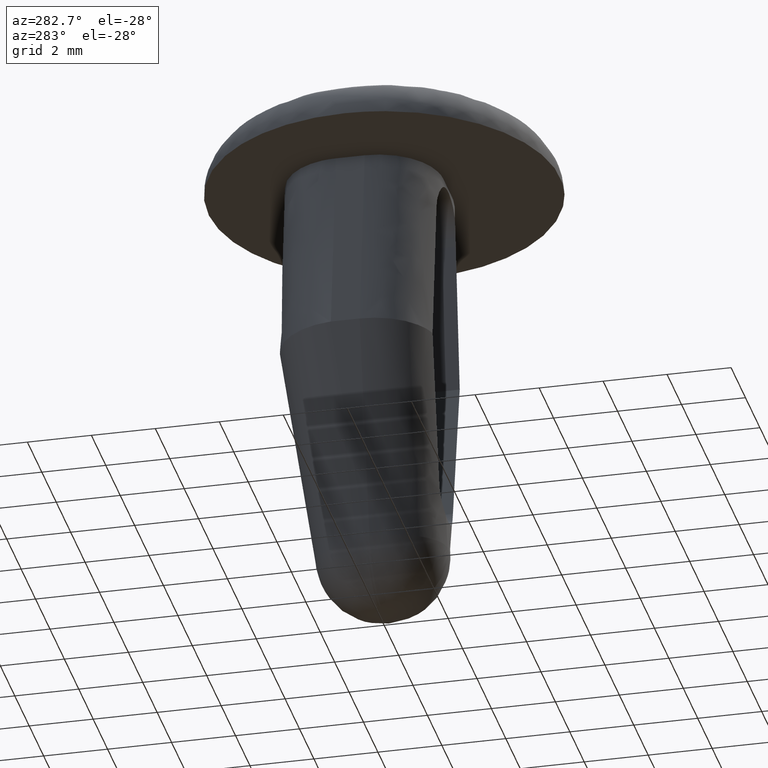
[diagram: clean part render]
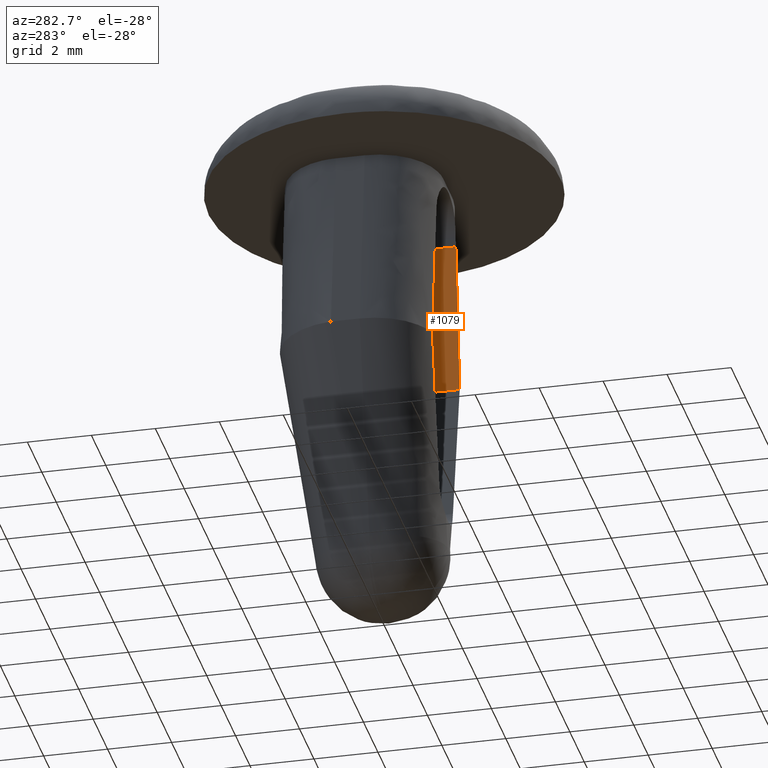
[diagram: same view with one face highlighted and labeled with its STEP entity id]
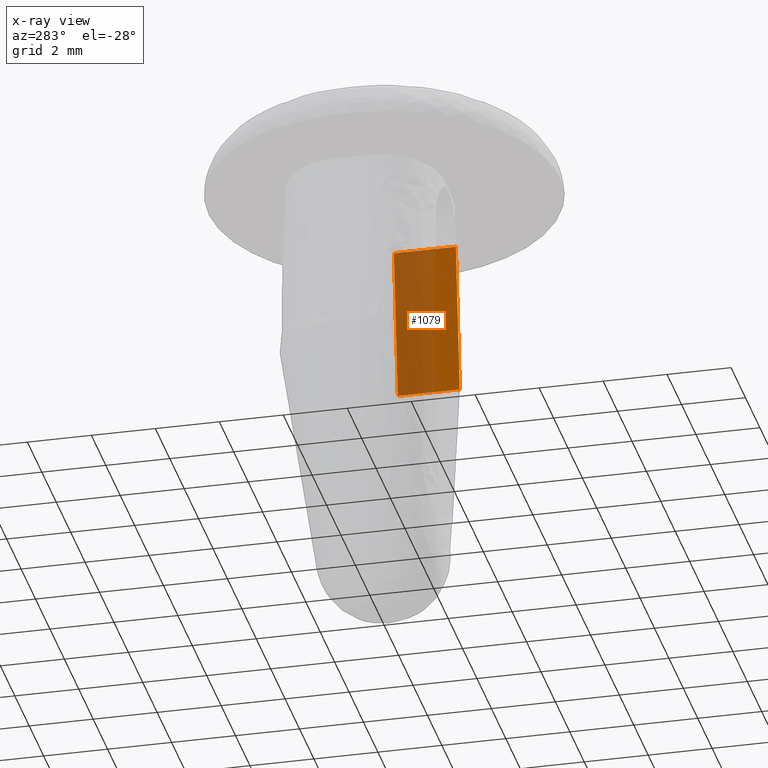
[diagram: x-ray of the same camera — body ghosted, the highlighted face saturated]
A machine part, auxiliary view. The second image highlights one B-rep face of the part: STEP entity #1079.
The next image is the same camera in x-ray: the body ghosted, the highlighted face saturated — about 61% of this face is hidden behind the body in this view.
In plain terms, the highlighted face is a freeform B-spline surface patch.
Its self-contained STEP definition (entity closure, byte-faithful):
#885=CARTESIAN_POINT('',(1.882902511410345,0.0,-5.940638240642350));
#886=VERTEX_POINT('',#885);
#977=CARTESIAN_POINT('',(1.340722477475782,0.0,-1.293396378719236));
#978=VERTEX_POINT('',#977);
#1032=CARTESIAN_POINT('',(1.882902511410345,0.0,-5.940638240642350));
#1033=CARTESIAN_POINT('',(1.340722477475782,0.0,-1.293396378719236));
#1034=QUASI_UNIFORM_CURVE('',1,(#1032,#1033),.UNSPECIFIED.,.F.,.U.);
#1035=EDGE_CURVE('',#886,#978,#1034,.T.);
#1047=CARTESIAN_POINT('',(1.909984256696149,-2.033219240372414,-6.172767807055243));
#1048=CARTESIAN_POINT('',(1.313643220782072,-2.033219240372414,-1.061266142739925));
#1049=CARTESIAN_POINT('',(1.909984256696149,0.096727798312777,-6.172767807055243));
#1050=CARTESIAN_POINT('',(1.313643220782072,0.096727798312777,-1.061266142739925));
#1051=B_SPLINE_SURFACE_WITH_KNOTS('',1,1,((#1047,#1049),(#1048,#1050)),.UNSPECIFIED.,.F.,.F.,.U.,(2,2),(2,2),(0.0,5.146170604965729),(0.0,2.129947038685191),.UNSPECIFIED.);
#1052=CARTESIAN_POINT('',(1.340724999999988,-1.936491302658480,-1.293395999999902));
#1053=VERTEX_POINT('',#1052);
#1054=CARTESIAN_POINT('',(1.340724999999988,-1.936491302658480,-1.293395999999902));
#1055=CARTESIAN_POINT('',(1.340722477475782,0.0,-1.293396378719236));
#1056=QUASI_UNIFORM_CURVE('',1,(#1054,#1055),.UNSPECIFIED.,.F.,.U.);
#1057=EDGE_CURVE('',#1053,#978,#1056,.T.);
#1058=ORIENTED_EDGE('',*,*,#1057,.T.);
#1059=ORIENTED_EDGE('',*,*,#1035,.F.);
#1060=CARTESIAN_POINT('',(1.882902511410345,-1.936491536565055,-5.940638240642350));
#1061=VERTEX_POINT('',#1060);
#1062=CARTESIAN_POINT('',(1.882902511410345,-1.936491536565055,-5.940638240642350));
#1063=CARTESIAN_POINT('',(1.882902511410345,0.0,-5.940638240642350));
#1064=QUASI_UNIFORM_CURVE('',1,(#1062,#1063),.UNSPECIFIED.,.F.,.U.);
#1065=EDGE_CURVE('',#1061,#886,#1064,.T.);
#1066=ORIENTED_EDGE('',*,*,#1065,.F.);
#1067=CARTESIAN_POINT('',(1.340724999999988,-1.936491302658480,-1.293395999999902));
#1068=CARTESIAN_POINT('',(1.495224610785445,-1.936491414073359,-2.617680210049998));
#1069=CARTESIAN_POINT('',(1.649724221570904,-1.936491525488429,-3.941964420100095));
#1070=CARTESIAN_POINT('',(1.804223832356360,-1.936491636903230,-5.266248630150190));
#1071=CARTESIAN_POINT('',(1.830450058707688,-1.936491655815833,-5.491045166980905));
#1072=CARTESIAN_POINT('',(1.856676285059015,-1.936491674728447,-5.715841703811622));
#1073=CARTESIAN_POINT('',(1.882902511410345,-1.936491536565055,-5.940638240642350));
#1074=B_SPLINE_CURVE_WITH_KNOTS('',3,(#1067,#1068,#1069,#1070,#1071,#1072,#1073),.UNSPECIFIED.,.F.,.U.,(4,3,4),(0.000000201356507,0.004000000000000,0.004678963681855),.UNSPECIFIED.);
#1075=EDGE_CURVE('',#1053,#1061,#1074,.T.);
#1076=ORIENTED_EDGE('',*,*,#1075,.F.);
#1077=EDGE_LOOP('',(#1058,#1059,#1066,#1076));
#1078=FACE_OUTER_BOUND('',#1077,.T.);
#1079=ADVANCED_FACE('',(#1078),#1051,.T.);